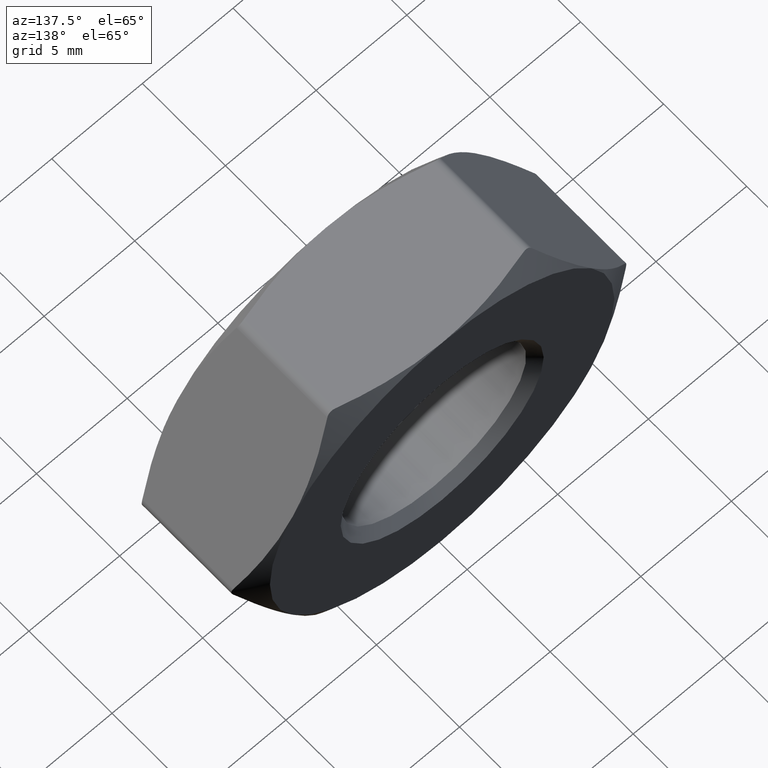
[diagram: clean part render]
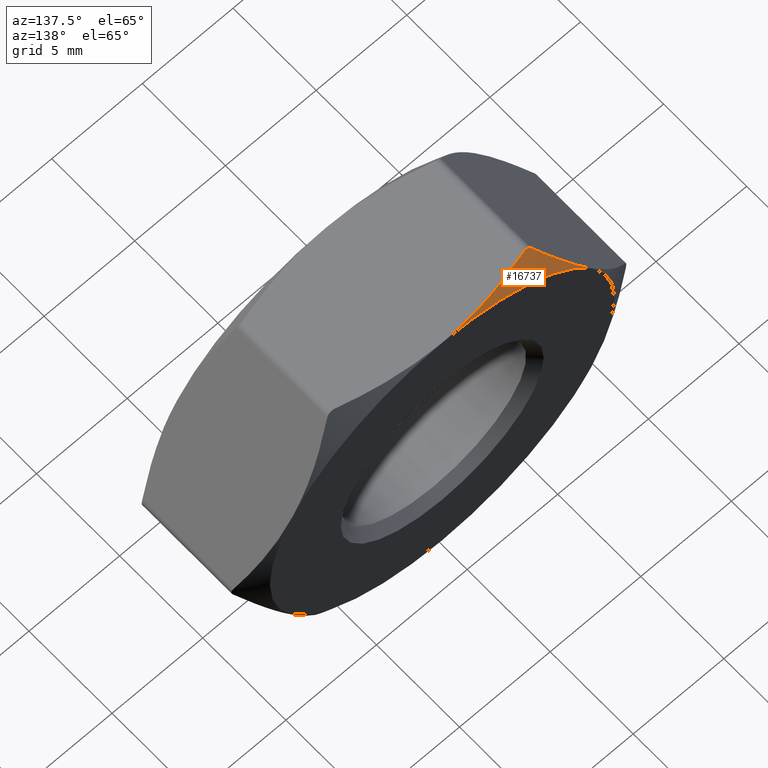
[diagram: same view with one face highlighted and labeled with its STEP entity id]
A machine part, auxiliary view. The second image highlights one B-rep face of the part: STEP entity #16737.
In plain terms, the highlighted conical surface has half-angle 60 deg.
Its self-contained STEP definition (entity closure, byte-faithful):
#269 = CARTESIAN_POINT ( 'NONE',  ( 3.931690912932538000E-017, 3.500000000000000000, 0.0000000000000000000 ) ) ;
#1021 = CARTESIAN_POINT ( 'NONE',  ( -8.227241335952168600, 3.500000000000000000, 4.750000000000000900 ) ) ;
#1313 = AXIS2_PLACEMENT_3D ( 'NONE', #269, #7869, #4200 ) ;
#1422 = CARTESIAN_POINT ( 'NONE',  ( -5.629165124598349800, 2.733161112797498400, 9.250000000000863300 ) ) ;
#1478 = EDGE_CURVE ( 'NONE', #13135, #6395, #8916, .T. ) ;
#1800 = EDGE_LOOP ( 'NONE', ( #7751, #2224, #9960, #3035 ) ) ;
#1847 = CARTESIAN_POINT ( 'NONE',  ( -5.629165124598349800, 2.733161112797498400, 9.250000000000863300 ) ) ;
#2224 = ORIENTED_EDGE ( 'NONE', *, *, #13397, .T. ) ;
#2463 = CARTESIAN_POINT ( 'NONE',  ( 3.931690912932538000E-017, 3.500000000000000000, 9.500000000000001800 ) ) ;
#2956 = CARTESIAN_POINT ( 'NONE',  ( -7.348052271291354700, 3.427662757294319500, 6.272800129451478100 ) ) ;
#3035 = ORIENTED_EDGE ( 'NONE', *, *, #16160, .T. ) ;
#3235 = DIRECTION ( 'NONE',  ( -0.0000000000000000000, -1.000000000000000000, -0.0000000000000000000 ) ) ;
#3647 = CARTESIAN_POINT ( 'NONE',  ( -3.482435840627231100, 3.163065989375614300, 9.500000000000000000 ) ) ;
#4200 = DIRECTION ( 'NONE',  ( 1.000000000000000000, 0.0000000000000000000, 0.0000000000000000000 ) ) ;
#4433 = B_SPLINE_CURVE_WITH_KNOTS ( 'NONE', 3,
 ( #7736, #8982, #9041, #11826, #5422, #15743 ),
 .UNSPECIFIED., .F., .F.,
 ( 4, 2, 4 ),
 ( 9.650992615314286700E-016, 0.0002637781458276249800, 0.0005275562916542848000 ),
 .UNSPECIFIED. ) ;
#5422 = CARTESIAN_POINT ( 'NONE',  ( -5.282050604140531300, 2.709362655883605300, 9.499999999999994700 ) ) ;
#6248 = CARTESIAN_POINT ( 'NONE',  ( -5.196152422707281300, 2.733161112797592600, 9.500000000000001800 ) ) ;
#6395 = VERTEX_POINT ( 'NONE', #1021 ) ;
#7400 = CARTESIAN_POINT ( 'NONE',  ( 3.931690912932538000E-017, 3.500000000000000000, 9.500000000000001800 ) ) ;
#7736 = CARTESIAN_POINT ( 'NONE',  ( -5.629165124598349800, 2.733161112797498400, 9.250000000000863300 ) ) ;
#7751 = ORIENTED_EDGE ( 'NONE', *, *, #1478, .F. ) ;
#7869 = DIRECTION ( 'NONE',  ( -1.123340260837868000E-017, -1.000000000000000000, -0.0000000000000000000 ) ) ;
#8102 = CARTESIAN_POINT ( 'NONE',  ( -6.482771478358115400, 3.161682687220364900, 7.771510425625342200 ) ) ;
#8431 = DIRECTION ( 'NONE',  ( 0.0000000000000000000, 0.0000000000000000000, 1.000000000000000000 ) ) ;
#8670 = CIRCLE ( 'NONE', #12851, 9.500000000000001800 ) ;
#8916 = B_SPLINE_CURVE_WITH_KNOTS ( 'NONE', 3,
 ( #1847, #13437, #8102, #2956, #12197, #14816 ),
 .UNSPECIFIED., .F., .F.,
 ( 4, 2, 4 ),
 ( 0.0002975922718325331100, 0.002923788827799095000, 0.005549985383765656700 ),
 .UNSPECIFIED. ) ;
#8982 = CARTESIAN_POINT ( 'NONE',  ( -5.586231662572763500, 2.709371315874028200, 9.324362937574012000 ) ) ;
#8998 = VERTEX_POINT ( 'NONE', #7400 ) ;
#9041 = CARTESIAN_POINT ( 'NONE',  ( -5.522793143055214800, 2.696196110277409000, 9.388672582389711300 ) ) ;
#9046 = CONICAL_SURFACE ( 'NONE', #1313, 9.500000000000001800, 1.047197551196604100 ) ;
#9960 = ORIENTED_EDGE ( 'NONE', *, *, #10385, .F. ) ;
#10385 = EDGE_CURVE ( 'NONE', #8998, #15107, #14054, .T. ) ;
#11379 = CARTESIAN_POINT ( 'NONE',  ( -1.748548221912492800, 3.428786257910812400, 9.500000000000001800 ) ) ;
#11469 = CARTESIAN_POINT ( 'NONE',  ( -5.196152422707281300, 2.733161112797592600, 9.500000000000001800 ) ) ;
#11826 = CARTESIAN_POINT ( 'NONE',  ( -5.370289189536082500, 2.696108957237621800, 9.476903473387970700 ) ) ;
#12197 = CARTESIAN_POINT ( 'NONE',  ( -7.785049015618851000, 3.500000000000007500, 5.515899565534070300 ) ) ;
#12246 = CARTESIAN_POINT ( 'NONE',  ( 3.931690912932538000E-017, 3.500000000000000000, 1.848398285660946700E-016 ) ) ;
#12656 = CARTESIAN_POINT ( 'NONE',  ( -4.348666152671949400, 2.967960792442867500, 9.500000000000001800 ) ) ;
#12780 = CARTESIAN_POINT ( 'NONE',  ( -0.8769579191401494200, 3.500000000000000000, 9.500000000000001800 ) ) ;
#12851 = AXIS2_PLACEMENT_3D ( 'NONE', #12246, #3235, #8431 ) ;
#13135 = VERTEX_POINT ( 'NONE', #1422 ) ;
#13397 = EDGE_CURVE ( 'NONE', #13135, #15107, #4433, .T. ) ;
#13437 = CARTESIAN_POINT ( 'NONE',  ( -6.054432448312228500, 2.968805358379079000, 8.513415388529582000 ) ) ;
#14054 = B_SPLINE_CURVE_WITH_KNOTS ( 'NONE', 3,
 ( #2463, #12780, #11379, #3647, #12656, #6248 ),
 .UNSPECIFIED., .F., .F.,
 ( 4, 2, 4 ),
 ( 0.009558317508500476300, 0.01217662311715559200, 0.01479492872581070700 ),
 .UNSPECIFIED. ) ;
#14816 = CARTESIAN_POINT ( 'NONE',  ( -8.227241335952168600, 3.500000000000000000, 4.750000000000000900 ) ) ;
#15107 = VERTEX_POINT ( 'NONE', #11469 ) ;
#15743 = CARTESIAN_POINT ( 'NONE',  ( -5.196152422707281300, 2.733161112797592600, 9.500000000000001800 ) ) ;
#16160 = EDGE_CURVE ( 'NONE', #8998, #6395, #8670, .T. ) ;
#16293 = FACE_OUTER_BOUND ( 'NONE', #1800, .T. ) ;
#16737 = ADVANCED_FACE ( 'NONE', ( #16293 ), #9046, .T. ) ;